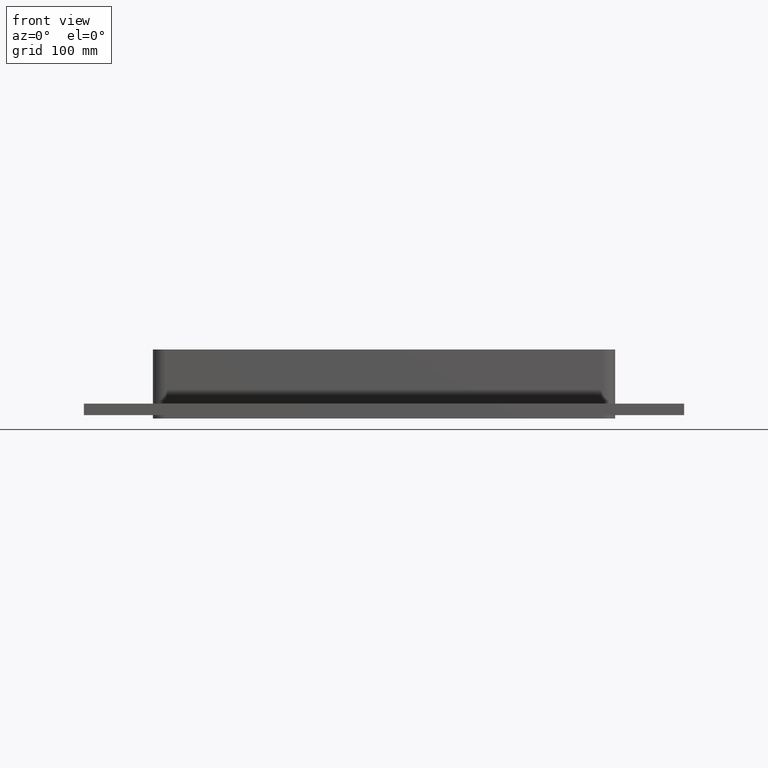
[diagram: clean part render]
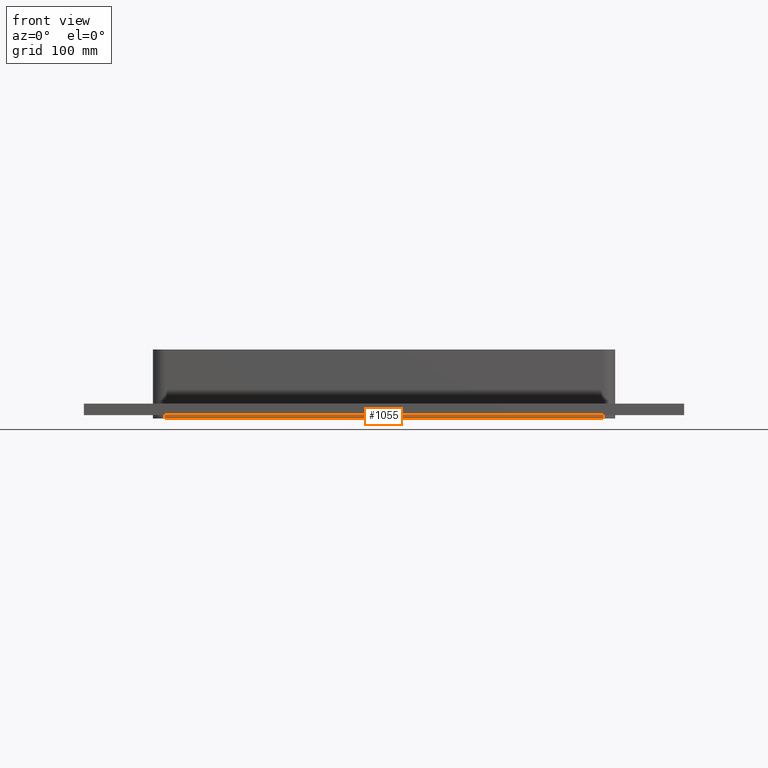
[diagram: same view with one face highlighted and labeled with its STEP entity id]
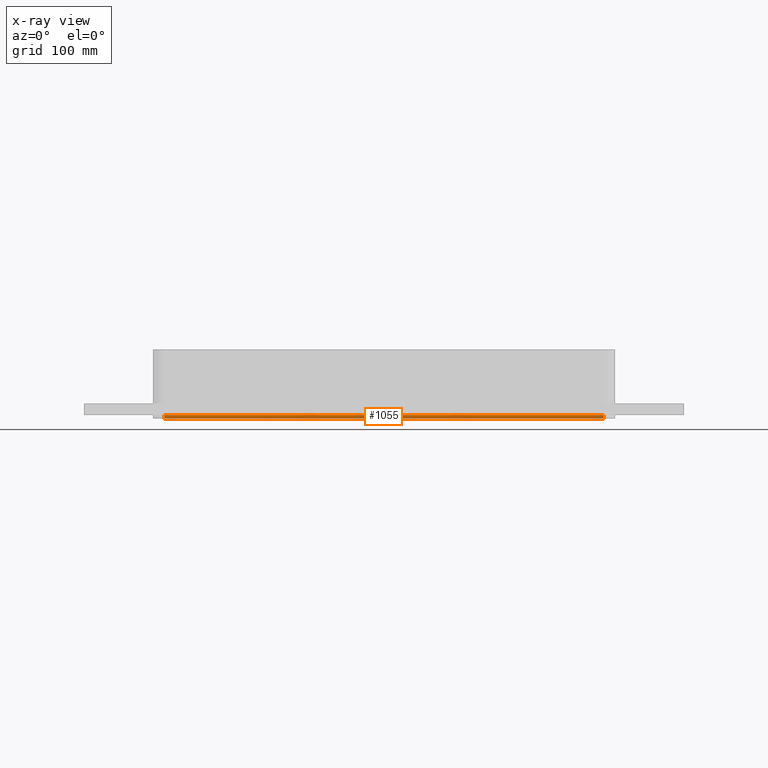
[diagram: x-ray of the same camera — body ghosted, the highlighted face saturated]
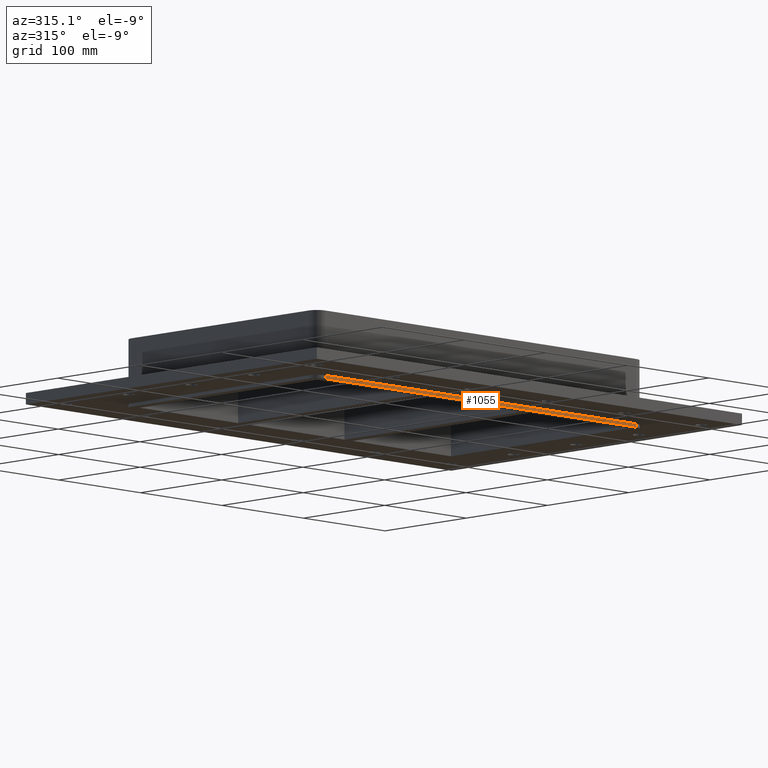
[diagram: same view with one face highlighted and labeled with its STEP entity id]
A machine part, front view. The second image highlights one B-rep face of the part: STEP entity #1055.
The next image is the same camera in x-ray: the body ghosted, the highlighted face saturated — about 0% of this face is hidden behind the body in this view.
A second angle (auxiliary view) of the same face is appended — the face is thin or edge-on in the first view.
In plain terms, the highlighted planar face has unit normal (0, -1, 0).
Its self-contained STEP definition (entity closure, byte-faithful):
#933=CARTESIAN_POINT('',(-190.75000000000003,-119.00000000000006,-27.0));
#934=VERTEX_POINT('',#933);
#942=CARTESIAN_POINT('',(190.75000000000003,-118.99999999999999,-27.0));
#943=VERTEX_POINT('',#942);
#944=CARTESIAN_POINT('',(190.75000000000006,-119.00000000000003,-27.0));
#945=DIRECTION('',(-1.0,0.0,0.0));
#946=VECTOR('',#945,381.50000000000011);
#947=LINE('',#944,#946);
#948=EDGE_CURVE('',#943,#934,#947,.T.);
#974=CARTESIAN_POINT('',(190.75000000000003,-119.00000000000003,-30.0));
#975=VERTEX_POINT('',#974);
#976=CARTESIAN_POINT('',(190.75000000000003,-119.00000000000003,-27.0));
#977=DIRECTION('',(0.0,0.0,-1.0));
#978=VECTOR('',#977,3.0);
#979=LINE('',#976,#978);
#980=EDGE_CURVE('',#943,#975,#979,.T.);
#1032=CARTESIAN_POINT('',(-200.74999999999989,-119.00000000000003,0.0));
#1033=DIRECTION('',(0.0,-1.0,0.0));
#1034=DIRECTION('',(1.0,0.0,0.0));
#1035=AXIS2_PLACEMENT_3D('',#1032,#1033,#1034);
#1036=PLANE('',#1035);
#1037=ORIENTED_EDGE('',*,*,#948,.T.);
#1038=CARTESIAN_POINT('',(-190.74999999999989,-119.00000000000003,-30.0));
#1039=VERTEX_POINT('',#1038);
#1040=CARTESIAN_POINT('',(-190.74999999999989,-119.00000000000003,-30.0));
#1041=DIRECTION('',(0.0,0.0,1.0));
#1042=VECTOR('',#1041,3.0);
#1043=LINE('',#1040,#1042);
#1044=EDGE_CURVE('',#1039,#934,#1043,.T.);
#1045=ORIENTED_EDGE('',*,*,#1044,.F.);
#1046=CARTESIAN_POINT('',(190.75,-119.00000000000003,-30.0));
#1047=DIRECTION('',(-1.0,0.0,0.0));
#1048=VECTOR('',#1047,381.49999999999989);
#1049=LINE('',#1046,#1048);
#1050=EDGE_CURVE('',#975,#1039,#1049,.T.);
#1051=ORIENTED_EDGE('',*,*,#1050,.F.);
#1052=ORIENTED_EDGE('',*,*,#980,.F.);
#1053=EDGE_LOOP('',(#1037,#1045,#1051,#1052));
#1054=FACE_OUTER_BOUND('',#1053,.T.);
#1055=ADVANCED_FACE('',(#1054),#1036,.T.);